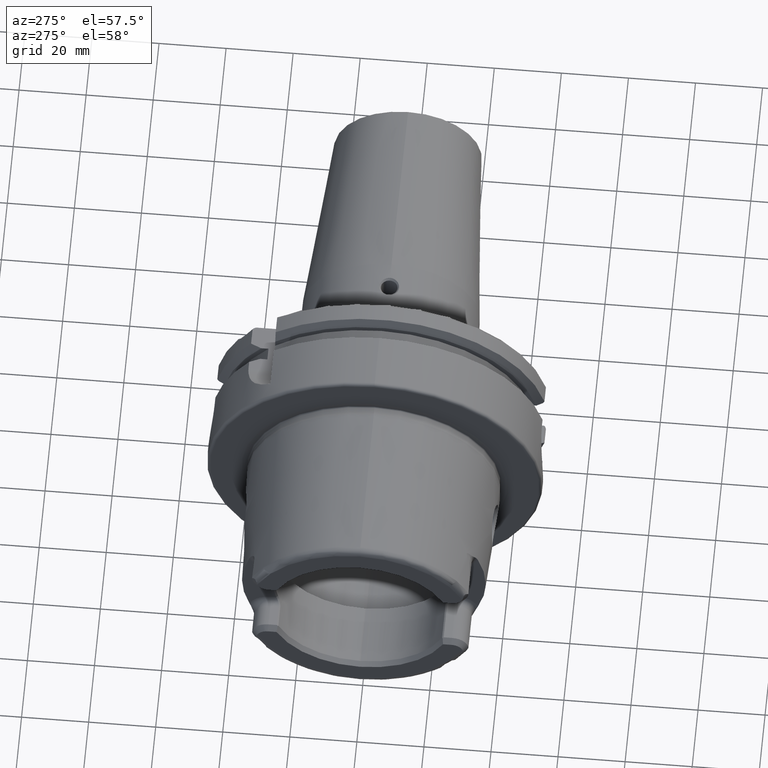
[diagram: clean part render]
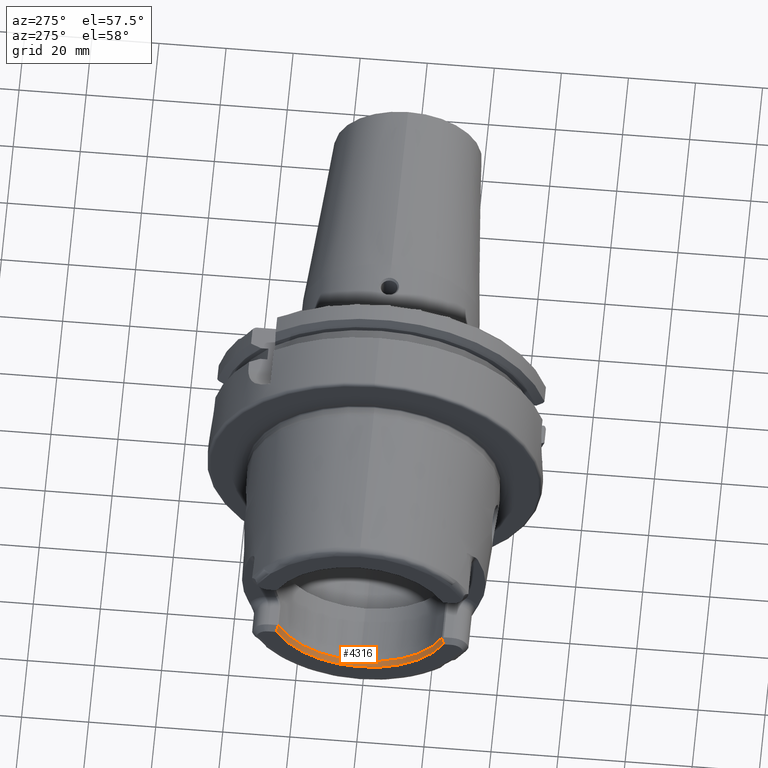
[diagram: same view with one face highlighted and labeled with its STEP entity id]
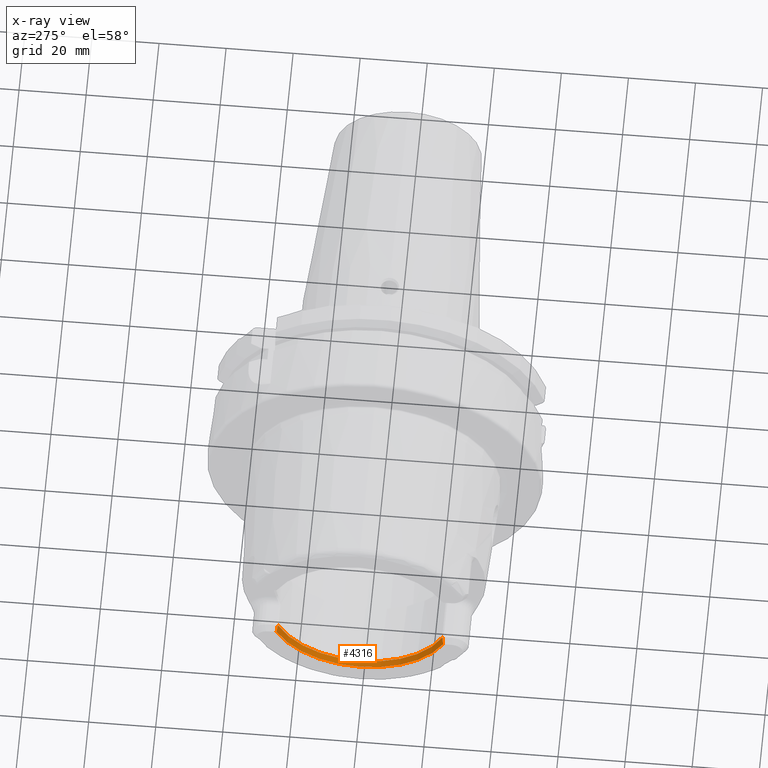
[diagram: x-ray of the same camera — body ghosted, the highlighted face saturated]
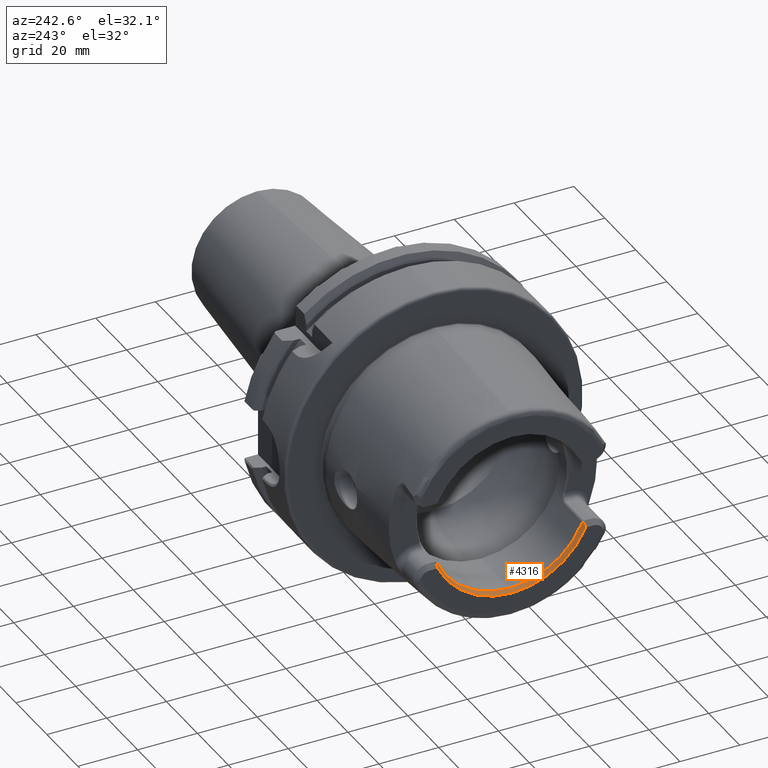
[diagram: same view with one face highlighted and labeled with its STEP entity id]
A machine part, auxiliary view. The second image highlights one B-rep face of the part: STEP entity #4316.
The next image is the same camera in x-ray: the body ghosted, the highlighted face saturated — about 0% of this face is hidden behind the body in this view.
A second angle (auxiliary view) of the same face is appended — the face is thin or edge-on in the first view.
In plain terms, the highlighted conical surface has half-angle 30 deg.
Its self-contained STEP definition (entity closure, byte-faithful):
#237=CARTESIAN_POINT('',(-4.85E1,0.E0,0.E0));
#238=DIRECTION('',(1.E0,0.E0,0.E0));
#239=DIRECTION('',(0.E0,0.E0,-1.E0));
#240=AXIS2_PLACEMENT_3D('',#237,#238,#239);
#303=CARTESIAN_POINT('',(-4.85E1,0.E0,0.E0));
#304=DIRECTION('',(1.E0,0.E0,0.E0));
#305=DIRECTION('',(0.E0,-9.211282370446E-1,-3.892592592593E-1));
#306=AXIS2_PLACEMENT_3D('',#303,#304,#305);
#1092=CARTESIAN_POINT('',(-4.869393353254E1,2.457796897212E1,
-1.020393353254E1));
#1093=CARTESIAN_POINT('',(-4.912852609133E1,2.466921784254E1,
-1.063852609133E1));
#1094=CARTESIAN_POINT('',(-4.956388661430E1,2.475243950706E1,
-1.107388661430E1));
#1095=CARTESIAN_POINT('',(-5.E1,2.482779181483E1,-1.151E1));
#1097=CARTESIAN_POINT('',(-5.E1,-2.482779181483E1,-1.151E1));
#1098=CARTESIAN_POINT('',(-4.956388661430E1,-2.475243950706E1,
-1.107388661430E1));
#1099=CARTESIAN_POINT('',(-4.912852609133E1,-2.466921784254E1,
-1.063852609133E1));
#1100=CARTESIAN_POINT('',(-4.869393353254E1,-2.457796897212E1,
-1.020393353254E1));
#1102=CARTESIAN_POINT('',(-5.E1,3.375077994860E-14,1.625366508051E-13));
#1103=DIRECTION('',(1.E0,0.E0,0.E0));
#1104=DIRECTION('',(0.E0,-9.072487308076E-1,-4.205945083428E-1));
#1105=AXIS2_PLACEMENT_3D('',#1102,#1103,#1104);
#1115=CARTESIAN_POINT('',(-4.869393353254E1,2.457796897212E1,
-1.020393353254E1));
#1116=CARTESIAN_POINT('',(-4.866140258012E1,2.454990877406E1,
-1.022253844058E1));
#1117=CARTESIAN_POINT('',(-4.859654931157E1,2.449383684327E1,
-1.025971612244E1));
#1118=CARTESIAN_POINT('',(-4.853211349795E1,2.443786169555E1,
-1.029682963368E1));
#1119=CARTESIAN_POINT('',(-4.849999999999E1,2.440989828167E1,
-1.031537037038E1));
#1144=CARTESIAN_POINT('',(-4.85E1,-2.440989828168E1,-1.031537037037E1));
#1145=CARTESIAN_POINT('',(-4.853211319116E1,-2.443786142840E1,
-1.029682981081E1));
#1146=CARTESIAN_POINT('',(-4.859654869644E1,-2.449383631017E1,
-1.025971647590E1));
#1147=CARTESIAN_POINT('',(-4.866140227181E1,-2.454990850812E1,
-1.022253861691E1));
#1148=CARTESIAN_POINT('',(-4.869393353254E1,-2.457796897212E1,
-1.020393353254E1));
#2981=CARTESIAN_POINT('',(-4.85E1,0.E0,-2.65E1));
#2982=CARTESIAN_POINT('',(-4.85E1,2.440989828168E1,-1.031537037037E1));
#2983=VERTEX_POINT('',#2981);
#2984=VERTEX_POINT('',#2982);
#2985=CARTESIAN_POINT('',(-4.85E1,-2.440989828168E1,-1.031537037037E1));
#2986=VERTEX_POINT('',#2985);
#3005=CARTESIAN_POINT('',(-5.E1,-2.482779181483E1,-1.151E1));
#3007=VERTEX_POINT('',#3005);
#3017=CARTESIAN_POINT('',(-4.869393353254E1,-2.457796897212E1,
-1.020393353254E1));
#3018=VERTEX_POINT('',#3017);
#3051=CARTESIAN_POINT('',(-5.E1,2.482779181483E1,-1.151E1));
#3052=VERTEX_POINT('',#3051);
#3059=CARTESIAN_POINT('',(-4.869393353254E1,2.457796897212E1,
-1.020393353254E1));
#3060=VERTEX_POINT('',#3059);
#4300=CARTESIAN_POINT('',(-4.924999999860E1,3.375077994860E-14,
1.625366508051E-13));
#4301=DIRECTION('',(-1.E0,0.E0,0.E0));
#4302=DIRECTION('',(0.E0,0.E0,-1.E0));
#4303=AXIS2_PLACEMENT_3D('',#4300,#4301,#4302);
#4304=CONICAL_SURFACE('',#4303,2.693301270108E1,3.E1);
#4305=ORIENTED_EDGE('',*,*,#3357,.F.);
#4307=ORIENTED_EDGE('',*,*,#4306,.T.);
#4308=ORIENTED_EDGE('',*,*,#3461,.F.);
#4309=ORIENTED_EDGE('',*,*,#3502,.F.);
#4311=ORIENTED_EDGE('',*,*,#4310,.T.);
#4312=ORIENTED_EDGE('',*,*,#4291,.F.);
#4313=ORIENTED_EDGE('',*,*,#3836,.T.);
#4314=EDGE_LOOP('',(#4305,#4307,#4308,#4309,#4311,#4312,#4313));
#4315=FACE_OUTER_BOUND('',#4314,.F.);
#4316=ADVANCED_FACE('',(#4315),#4304,.F.);
#241=CIRCLE('',#240,2.65E1);
#307=CIRCLE('',#306,2.65E1);
#1096=B_SPLINE_CURVE_WITH_KNOTS('',3,(#1092,#1093,#1094,#1095),.UNSPECIFIED.,
.F.,.F.,(4,4),(0.E0,1.E0),.UNSPECIFIED.);
#1101=B_SPLINE_CURVE_WITH_KNOTS('',3,(#1097,#1098,#1099,#1100),.UNSPECIFIED.,
.F.,.F.,(4,4),(0.E0,1.E0),.UNSPECIFIED.);
#1106=CIRCLE('',#1105,2.736602540378E1);
#1120=B_SPLINE_CURVE_WITH_KNOTS('',3,(#1115,#1116,#1117,#1118,#1119),
.UNSPECIFIED.,.F.,.F.,(4,1,4),(0.E0,5.E-1,1.E0),.UNSPECIFIED.);
#1149=B_SPLINE_CURVE_WITH_KNOTS('',3,(#1144,#1145,#1146,#1147,#1148),
.UNSPECIFIED.,.F.,.F.,(4,1,4),(0.E0,5.E-1,1.E0),.UNSPECIFIED.);
#3357=EDGE_CURVE('',#3060,#3052,#1096,.T.);
#3461=EDGE_CURVE('',#2983,#2984,#241,.T.);
#3502=EDGE_CURVE('',#2986,#2983,#307,.T.);
#3836=EDGE_CURVE('',#3007,#3052,#1106,.T.);
#4291=EDGE_CURVE('',#3007,#3018,#1101,.T.);
#4306=EDGE_CURVE('',#3060,#2984,#1120,.T.);
#4310=EDGE_CURVE('',#2986,#3018,#1149,.T.);